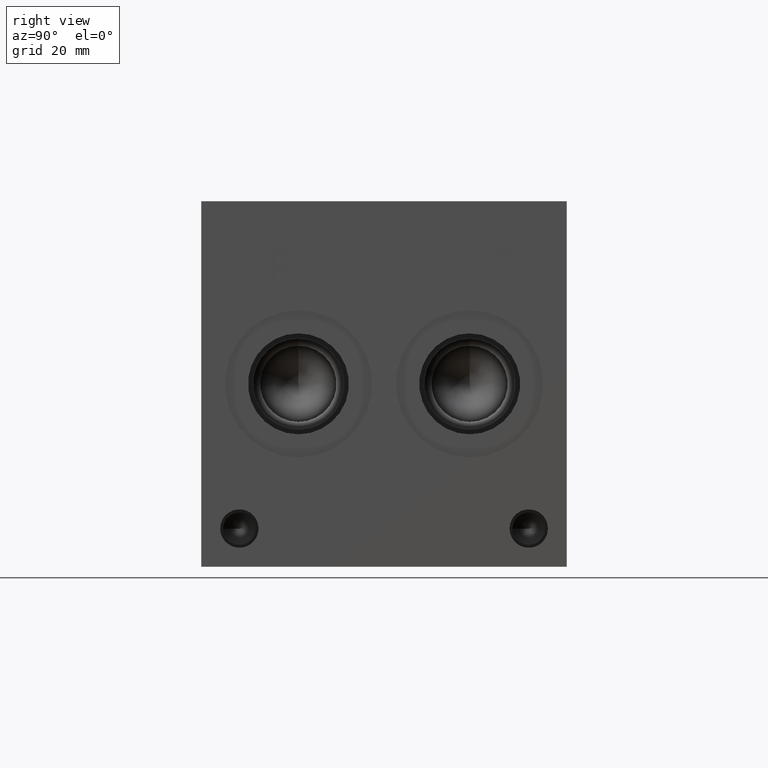
[diagram: clean part render]
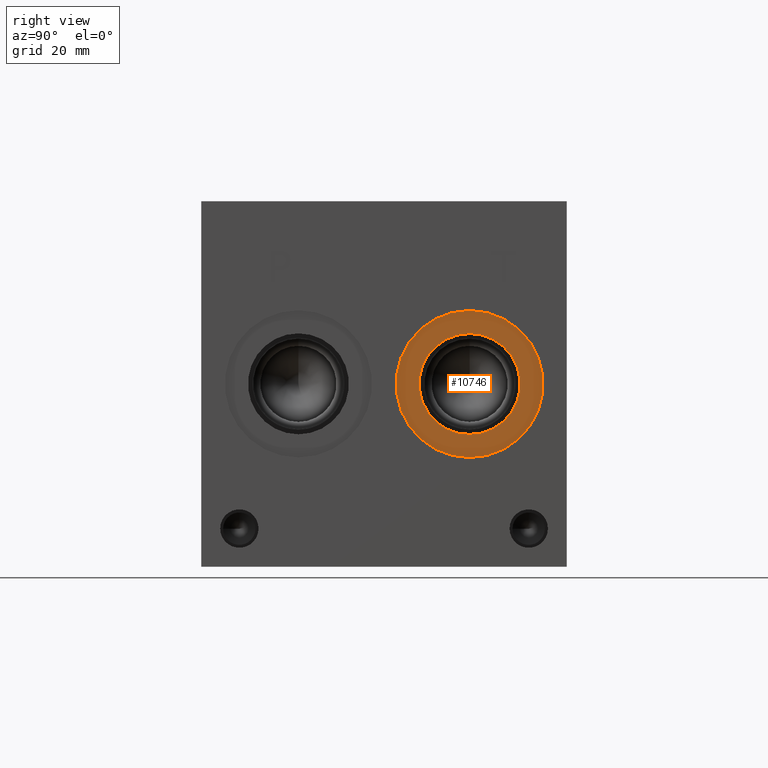
[diagram: same view with one face highlighted and labeled with its STEP entity id]
A machine part, right view. The second image highlights one B-rep face of the part: STEP entity #10746.
In plain terms, the highlighted planar face has unit normal (-1, 0, 0).
Its self-contained STEP definition (entity closure, byte-faithful):
#130=CIRCLE('',#11215,15.3416);
#131=CIRCLE('',#11217,10.5283);
#305=FACE_BOUND('',#1885,.T.);
#1242=FACE_OUTER_BOUND('',#1884,.T.);
#1884=EDGE_LOOP('',(#9038));
#1885=EDGE_LOOP('',(#9039));
#4979=VERTEX_POINT('',#18092);
#4980=VERTEX_POINT('',#18096);
#6370=EDGE_CURVE('',#4979,#4979,#130,.T.);
#6371=EDGE_CURVE('',#4980,#4980,#131,.T.);
#9038=ORIENTED_EDGE('',*,*,#6370,.F.);
#9039=ORIENTED_EDGE('',*,*,#6371,.T.);
#9829=PLANE('',#11216);
#10746=ADVANCED_FACE('',(#1242,#305),#9829,.F.);
#11215=AXIS2_PLACEMENT_3D('',#18094,#13039,#13040);
#11216=AXIS2_PLACEMENT_3D('',#18095,#13041,#13042);
#11217=AXIS2_PLACEMENT_3D('',#18097,#13043,#13044);
#13039=DIRECTION('center_axis',(-1.,0.,0.));
#13040=DIRECTION('ref_axis',(0.,0.,1.));
#13041=DIRECTION('center_axis',(-1.,0.,0.));
#13042=DIRECTION('ref_axis',(0.,0.,1.));
#13043=DIRECTION('center_axis',(-1.,0.,0.));
#13044=DIRECTION('ref_axis',(0.,0.,1.));
#18092=CARTESIAN_POINT('',(107.1626,55.9562,53.4416));
#18094=CARTESIAN_POINT('Origin',(107.1626,55.9562,38.1));
#18095=CARTESIAN_POINT('Origin',(107.1626,55.9562,27.5717));
#18096=CARTESIAN_POINT('',(107.1626,55.9562,48.6283));
#18097=CARTESIAN_POINT('Origin',(107.1626,55.9562,38.1));